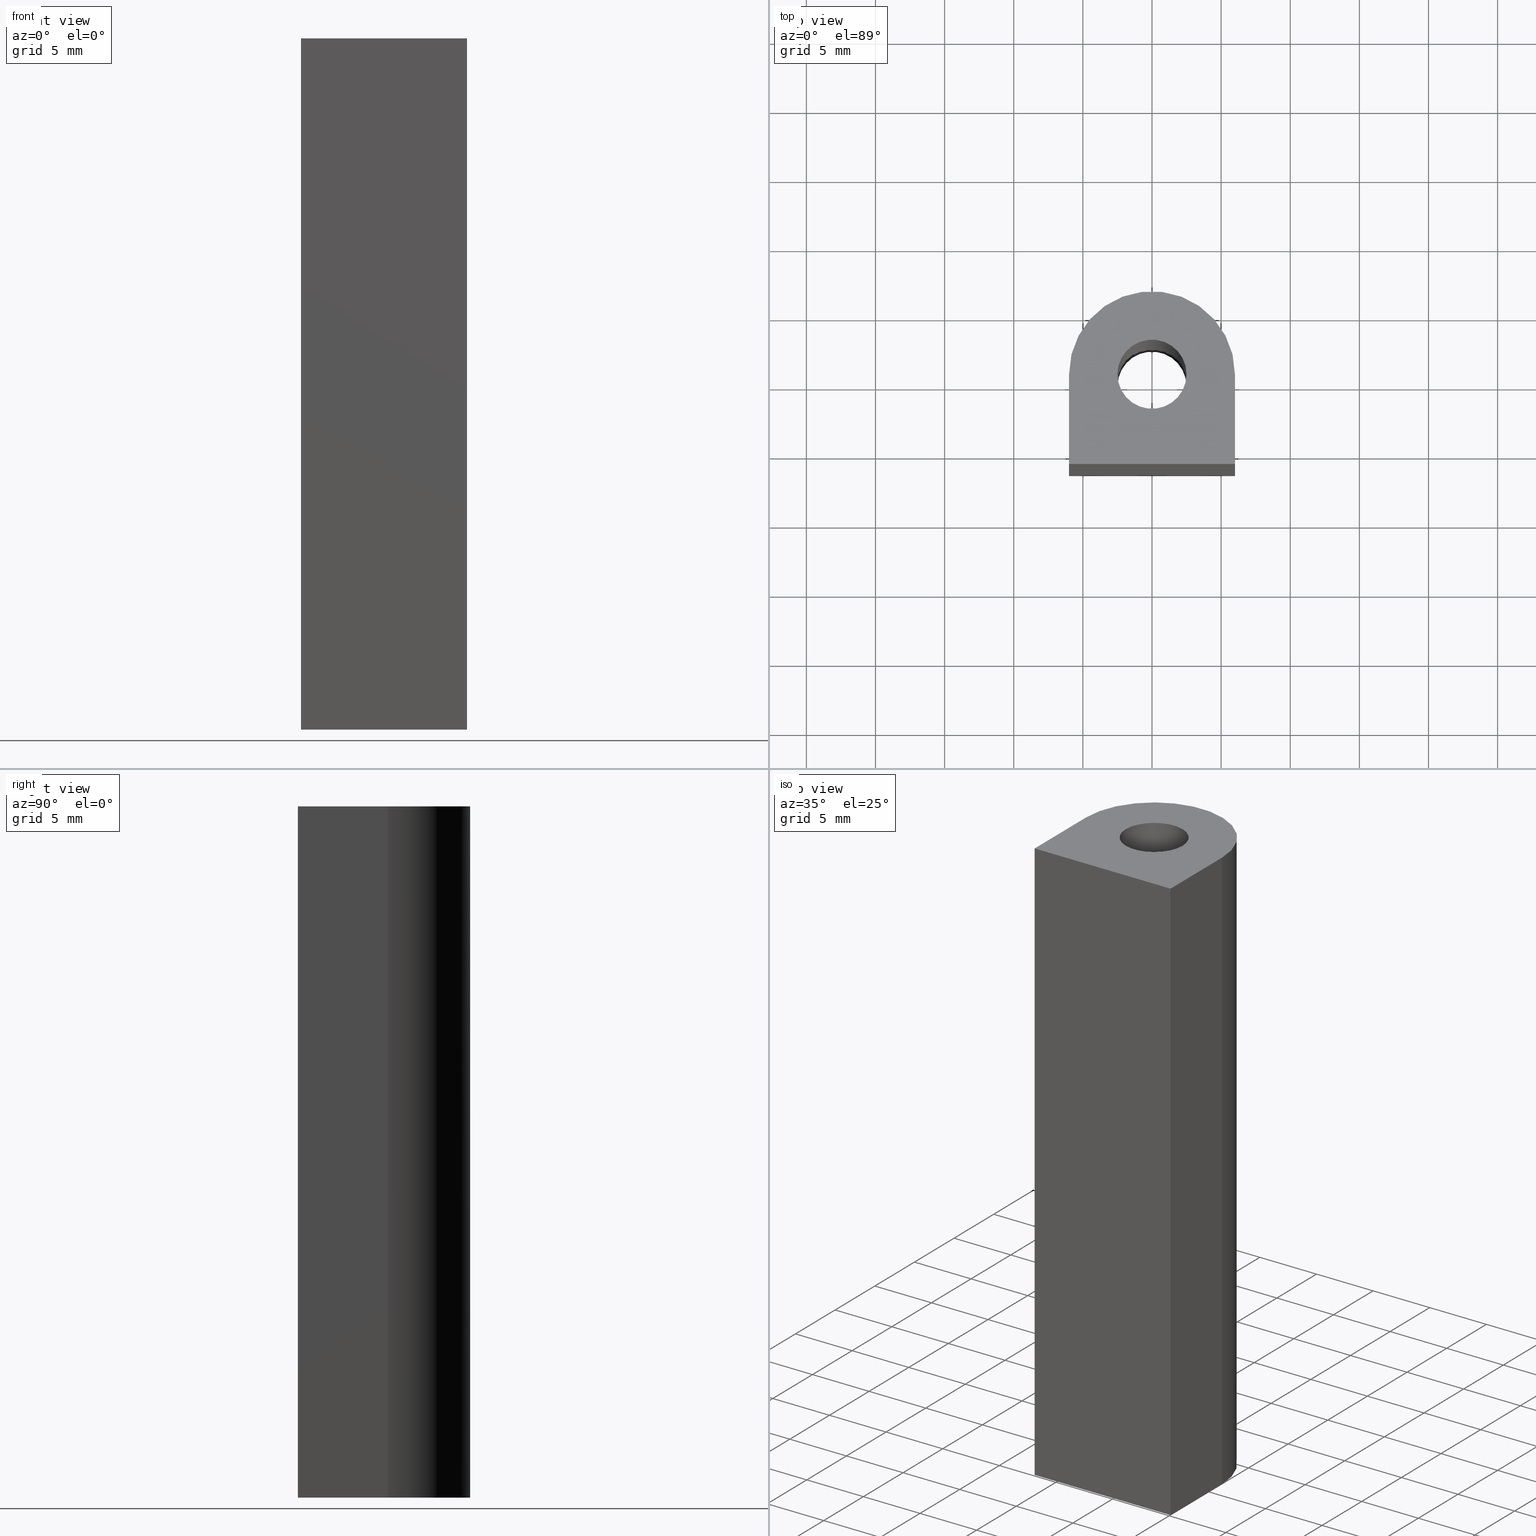
[diagram: canonical four-view strip — front | top / right | iso, engineering-drawing reading convention]
A machine part, canonical four-view strip (front | top / right | iso — engineering-drawing reading convention). The complete STEP part file that produces these views, byte-faithful:
ISO-10303-21;
HEADER;
/* Generated by software containing ST-Developer
 * from STEP Tools, Inc. (www.steptools.com) 
 */

FILE_DESCRIPTION(
/* description */ (''),
/* implementation_level */ '2;1');

FILE_NAME(
/* name */ 'E_3_01_09_12_00_WKZ-0046.stp',
/* time_stamp */ '2025-11-24T10:29:25+01:00',
/* author */ ('d.fischer'),
/* organization */ (''),
/* preprocessor_version */ 'ST-DEVELOPER v20',
/* originating_system */ 'Autodesk Inventor 2025',
/* authorisation */ '');

FILE_SCHEMA (('AUTOMOTIVE_DESIGN { 1 0 10303 214 3 1 1 }'));
ENDSEC;

DATA;
#10=MECHANICAL_DESIGN_GEOMETRIC_PRESENTATION_REPRESENTATION('',(#14,#15),
#234);
#11=SHAPE_REPRESENTATION_RELATIONSHIP('SRR','None',#241,#12);
#12=ADVANCED_BREP_SHAPE_REPRESENTATION('',(#13),#233);
#13=MANIFOLD_SOLID_BREP('Volumenk\X\F6rper1',#129);
#14=STYLED_ITEM('',(#251),#127);
#15=STYLED_ITEM('',(#250),#13);
#16=FACE_BOUND('',#32,.T.);
#17=FACE_BOUND('',#38,.T.);
#18=PLANE('',#155);
#19=PLANE('',#157);
#20=PLANE('',#160);
#21=PLANE('',#161);
#22=PLANE('',#162);
#23=FACE_OUTER_BOUND('',#30,.T.);
#24=FACE_OUTER_BOUND('',#31,.T.);
#25=FACE_OUTER_BOUND('',#33,.T.);
#26=FACE_OUTER_BOUND('',#34,.T.);
#27=FACE_OUTER_BOUND('',#35,.T.);
#28=FACE_OUTER_BOUND('',#36,.T.);
#29=FACE_OUTER_BOUND('',#37,.T.);
#30=EDGE_LOOP('',(#90,#91,#92,#93));
#31=EDGE_LOOP('',(#94,#95,#96,#97));
#32=EDGE_LOOP('',(#98));
#33=EDGE_LOOP('',(#99,#100,#101,#102));
#34=EDGE_LOOP('',(#103,#104,#105,#106));
#35=EDGE_LOOP('',(#107,#108,#109,#110));
#36=EDGE_LOOP('',(#111,#112,#113,#114));
#37=EDGE_LOOP('',(#115,#116,#117,#118));
#38=EDGE_LOOP('',(#119));
#39=LINE('',#203,#50);
#40=LINE('',#208,#51);
#41=LINE('',#210,#52);
#42=LINE('',#212,#53);
#43=LINE('',#217,#54);
#44=LINE('',#218,#55);
#45=LINE('',#219,#56);
#46=LINE('',#223,#57);
#47=LINE('',#226,#58);
#48=LINE('',#227,#59);
#49=LINE('',#229,#60);
#50=VECTOR('',#169,2.5);
#51=VECTOR('',#174,10.);
#52=VECTOR('',#175,10.);
#53=VECTOR('',#176,10.);
#54=VECTOR('',#181,10.);
#55=VECTOR('',#182,10.);
#56=VECTOR('',#183,10.);
#57=VECTOR('',#188,10.);
#58=VECTOR('',#191,10.);
#59=VECTOR('',#192,10.);
#60=VECTOR('',#195,10.);
#61=CIRCLE('',#153,2.5);
#62=CIRCLE('',#154,2.5);
#63=CIRCLE('',#156,6.);
#64=CIRCLE('',#159,6.);
#65=VERTEX_POINT('',#200);
#66=VERTEX_POINT('',#202);
#67=VERTEX_POINT('',#206);
#68=VERTEX_POINT('',#207);
#69=VERTEX_POINT('',#209);
#70=VERTEX_POINT('',#211);
#71=VERTEX_POINT('',#215);
#72=VERTEX_POINT('',#216);
#73=VERTEX_POINT('',#221);
#74=VERTEX_POINT('',#225);
#75=EDGE_CURVE('',#65,#65,#61,.T.);
#76=EDGE_CURVE('',#65,#66,#39,.T.);
#77=EDGE_CURVE('',#66,#66,#62,.T.);
#78=EDGE_CURVE('',#67,#68,#40,.T.);
#79=EDGE_CURVE('',#69,#67,#41,.T.);
#80=EDGE_CURVE('',#70,#69,#42,.T.);
#81=EDGE_CURVE('',#68,#70,#63,.T.);
#82=EDGE_CURVE('',#71,#72,#43,.T.);
#83=EDGE_CURVE('',#70,#72,#44,.T.);
#84=EDGE_CURVE('',#71,#69,#45,.T.);
#85=EDGE_CURVE('',#72,#73,#64,.T.);
#86=EDGE_CURVE('',#68,#73,#46,.T.);
#87=EDGE_CURVE('',#73,#74,#47,.T.);
#88=EDGE_CURVE('',#67,#74,#48,.T.);
#89=EDGE_CURVE('',#74,#71,#49,.T.);
#90=ORIENTED_EDGE('',*,*,#75,.F.);
#91=ORIENTED_EDGE('',*,*,#76,.T.);
#92=ORIENTED_EDGE('',*,*,#77,.F.);
#93=ORIENTED_EDGE('',*,*,#76,.F.);
#94=ORIENTED_EDGE('',*,*,#78,.F.);
#95=ORIENTED_EDGE('',*,*,#79,.F.);
#96=ORIENTED_EDGE('',*,*,#80,.F.);
#97=ORIENTED_EDGE('',*,*,#81,.F.);
#98=ORIENTED_EDGE('',*,*,#75,.T.);
#99=ORIENTED_EDGE('',*,*,#82,.T.);
#100=ORIENTED_EDGE('',*,*,#83,.F.);
#101=ORIENTED_EDGE('',*,*,#80,.T.);
#102=ORIENTED_EDGE('',*,*,#84,.F.);
#103=ORIENTED_EDGE('',*,*,#85,.T.);
#104=ORIENTED_EDGE('',*,*,#86,.F.);
#105=ORIENTED_EDGE('',*,*,#81,.T.);
#106=ORIENTED_EDGE('',*,*,#83,.T.);
#107=ORIENTED_EDGE('',*,*,#87,.T.);
#108=ORIENTED_EDGE('',*,*,#88,.F.);
#109=ORIENTED_EDGE('',*,*,#78,.T.);
#110=ORIENTED_EDGE('',*,*,#86,.T.);
#111=ORIENTED_EDGE('',*,*,#89,.T.);
#112=ORIENTED_EDGE('',*,*,#84,.T.);
#113=ORIENTED_EDGE('',*,*,#79,.T.);
#114=ORIENTED_EDGE('',*,*,#88,.T.);
#115=ORIENTED_EDGE('',*,*,#82,.F.);
#116=ORIENTED_EDGE('',*,*,#89,.F.);
#117=ORIENTED_EDGE('',*,*,#87,.F.);
#118=ORIENTED_EDGE('',*,*,#85,.F.);
#119=ORIENTED_EDGE('',*,*,#77,.T.);
#120=CYLINDRICAL_SURFACE('',#152,2.5);
#121=CYLINDRICAL_SURFACE('',#158,6.);
#122=ADVANCED_FACE('',(#23),#120,.F.);
#123=ADVANCED_FACE('',(#24,#16),#18,.F.);
#124=ADVANCED_FACE('',(#25),#19,.T.);
#125=ADVANCED_FACE('',(#26),#121,.T.);
#126=ADVANCED_FACE('',(#27),#20,.T.);
#127=ADVANCED_FACE('',(#28),#21,.T.);
#128=ADVANCED_FACE('',(#29,#17),#22,.T.);
#129=CLOSED_SHELL('',(#122,#123,#124,#125,#126,#127,#128));
#130=DERIVED_UNIT_ELEMENT(#133,1.);
#131=DERIVED_UNIT_ELEMENT(#236,-3.);
#132=DIMENSIONAL_EXPONENTS(0.,1.,0.,0.,0.,0.,0.);
#133=(
CONVERSION_BASED_UNIT('gram',#135)
MASS_UNIT()
NAMED_UNIT(#132)
);
#134=(
MASS_UNIT()
NAMED_UNIT(*)
SI_UNIT(.KILO.,.GRAM.)
);
#135=MASS_MEASURE_WITH_UNIT(MASS_MEASURE(0.001),#134);
#136=DERIVED_UNIT((#130,#131));
#137=MEASURE_REPRESENTATION_ITEM('density measure',
POSITIVE_RATIO_MEASURE(8.03),#136);
#138=PROPERTY_DEFINITION_REPRESENTATION(#143,#140);
#139=PROPERTY_DEFINITION_REPRESENTATION(#144,#141);
#140=REPRESENTATION('material name',(#142),#233);
#141=REPRESENTATION('density',(#137),#233);
#142=DESCRIPTIVE_REPRESENTATION_ITEM('1.4301','1.4301');
#143=PROPERTY_DEFINITION('material property','material name',#243);
#144=PROPERTY_DEFINITION('material property','density of part',#243);
#145=DATE_TIME_ROLE('creation_date');
#146=APPLIED_DATE_AND_TIME_ASSIGNMENT(#147,#145,(#243));
#147=DATE_AND_TIME(#148,#149);
#148=CALENDAR_DATE(2011,21,10);
#149=LOCAL_TIME(0,0,0.,#150);
#150=COORDINATED_UNIVERSAL_TIME_OFFSET(0,0,.BEHIND.);
#151=AXIS2_PLACEMENT_3D('',#198,#163,#164);
#152=AXIS2_PLACEMENT_3D('',#199,#165,#166);
#153=AXIS2_PLACEMENT_3D('',#201,#167,#168);
#154=AXIS2_PLACEMENT_3D('',#204,#170,#171);
#155=AXIS2_PLACEMENT_3D('',#205,#172,#173);
#156=AXIS2_PLACEMENT_3D('',#213,#177,#178);
#157=AXIS2_PLACEMENT_3D('',#214,#179,#180);
#158=AXIS2_PLACEMENT_3D('',#220,#184,#185);
#159=AXIS2_PLACEMENT_3D('',#222,#186,#187);
#160=AXIS2_PLACEMENT_3D('',#224,#189,#190);
#161=AXIS2_PLACEMENT_3D('',#228,#193,#194);
#162=AXIS2_PLACEMENT_3D('',#230,#196,#197);
#163=DIRECTION('axis',(0.,0.,1.));
#164=DIRECTION('refdir',(1.,0.,0.));
#165=DIRECTION('center_axis',(0.,0.,1.));
#166=DIRECTION('ref_axis',(-1.,0.,0.));
#167=DIRECTION('center_axis',(0.,0.,1.));
#168=DIRECTION('ref_axis',(-1.,0.,0.));
#169=DIRECTION('',(0.,0.,1.));
#170=DIRECTION('center_axis',(0.,0.,-1.));
#171=DIRECTION('ref_axis',(-1.,0.,0.));
#172=DIRECTION('center_axis',(0.,0.,1.));
#173=DIRECTION('ref_axis',(1.,0.,0.));
#174=DIRECTION('',(-3.41607084500048E-16,1.,0.));
#175=DIRECTION('',(1.,0.,0.));
#176=DIRECTION('',(-1.70803542250024E-16,-1.,0.));
#177=DIRECTION('center_axis',(0.,0.,1.));
#178=DIRECTION('ref_axis',(1.85037170770859E-16,1.,0.));
#179=DIRECTION('center_axis',(-1.,1.70803542250024E-16,0.));
#180=DIRECTION('ref_axis',(0.,0.,1.));
#181=DIRECTION('',(1.70803542250024E-16,1.,0.));
#182=DIRECTION('',(0.,0.,1.));
#183=DIRECTION('',(0.,0.,-1.));
#184=DIRECTION('center_axis',(0.,0.,1.));
#185=DIRECTION('ref_axis',(1.,1.85037170770859E-16,0.));
#186=DIRECTION('center_axis',(0.,0.,-1.));
#187=DIRECTION('ref_axis',(1.,1.85037170770859E-16,0.));
#188=DIRECTION('',(0.,0.,1.));
#189=DIRECTION('center_axis',(1.,3.41607084500048E-16,0.));
#190=DIRECTION('ref_axis',(0.,0.,-1.));
#191=DIRECTION('',(3.41607084500048E-16,-1.,0.));
#192=DIRECTION('',(0.,0.,1.));
#193=DIRECTION('center_axis',(0.,-1.,0.));
#194=DIRECTION('ref_axis',(0.,0.,-1.));
#195=DIRECTION('',(-1.,0.,0.));
#196=DIRECTION('center_axis',(0.,0.,1.));
#197=DIRECTION('ref_axis',(1.,0.,0.));
#198=CARTESIAN_POINT('',(0.,0.,0.));
#199=CARTESIAN_POINT('Origin',(0.,0.25,0.));
#200=CARTESIAN_POINT('',(2.5,0.250000000000001,-25.));
#201=CARTESIAN_POINT('Origin',(0.,0.25,-25.));
#202=CARTESIAN_POINT('',(2.5,0.250000000000001,25.));
#203=CARTESIAN_POINT('',(2.5,0.250000000000001,0.));
#204=CARTESIAN_POINT('Origin',(0.,0.25,25.));
#205=CARTESIAN_POINT('Origin',(-9.71445146547012E-16,-0.885457507234779,
-25.));
#206=CARTESIAN_POINT('',(6.,-6.25,-25.));
#207=CARTESIAN_POINT('',(6.,0.25,-25.));
#208=CARTESIAN_POINT('',(6.,-6.25,-25.));
#209=CARTESIAN_POINT('',(-6.,-6.25,-25.));
#210=CARTESIAN_POINT('',(-6.,-6.25,-25.));
#211=CARTESIAN_POINT('',(-6.,0.25,-25.));
#212=CARTESIAN_POINT('',(-6.,0.25,-25.));
#213=CARTESIAN_POINT('Origin',(-3.33066907387547E-15,0.250000000000001,
-25.));
#214=CARTESIAN_POINT('Origin',(-6.,-6.25,0.));
#215=CARTESIAN_POINT('',(-6.,-6.25,25.));
#216=CARTESIAN_POINT('',(-6.,0.25,25.));
#217=CARTESIAN_POINT('',(-6.,0.25,25.));
#218=CARTESIAN_POINT('',(-6.,0.25,0.));
#219=CARTESIAN_POINT('',(-6.,-6.25,0.));
#220=CARTESIAN_POINT('Origin',(0.,0.249999999999999,0.));
#221=CARTESIAN_POINT('',(6.,0.25,25.));
#222=CARTESIAN_POINT('Origin',(0.,0.249999999999999,25.));
#223=CARTESIAN_POINT('',(6.,0.25,0.));
#224=CARTESIAN_POINT('Origin',(6.,0.25,0.));
#225=CARTESIAN_POINT('',(6.,-6.25,25.));
#226=CARTESIAN_POINT('',(6.,-6.25,25.));
#227=CARTESIAN_POINT('',(6.,-6.25,0.));
#228=CARTESIAN_POINT('Origin',(6.,-6.25,0.));
#229=CARTESIAN_POINT('',(-6.,-6.25,25.));
#230=CARTESIAN_POINT('Origin',(-8.32667268468867E-16,-0.885457507234779,
25.));
#231=UNCERTAINTY_MEASURE_WITH_UNIT(LENGTH_MEASURE(0.01),#235,
'DISTANCE_ACCURACY_VALUE',
'Maximum model space distance between geometric entities at asserted c
onnectivities');
#232=UNCERTAINTY_MEASURE_WITH_UNIT(LENGTH_MEASURE(0.01),#235,
'DISTANCE_ACCURACY_VALUE',
'Maximum model space distance between geometric entities at asserted c
onnectivities');
#233=(
GEOMETRIC_REPRESENTATION_CONTEXT(3)
GLOBAL_UNCERTAINTY_ASSIGNED_CONTEXT((#231))
GLOBAL_UNIT_ASSIGNED_CONTEXT((#235,#237,#238))
REPRESENTATION_CONTEXT('','3D')
);
#234=(
GEOMETRIC_REPRESENTATION_CONTEXT(3)
GLOBAL_UNCERTAINTY_ASSIGNED_CONTEXT((#232))
GLOBAL_UNIT_ASSIGNED_CONTEXT((#235,#237,#238))
REPRESENTATION_CONTEXT('','3D')
);
#235=(
LENGTH_UNIT()
NAMED_UNIT(*)
SI_UNIT(.MILLI.,.METRE.)
);
#236=(
LENGTH_UNIT()
NAMED_UNIT(*)
SI_UNIT(.CENTI.,.METRE.)
);
#237=(
NAMED_UNIT(*)
PLANE_ANGLE_UNIT()
SI_UNIT($,.RADIAN.)
);
#238=(
NAMED_UNIT(*)
SI_UNIT($,.STERADIAN.)
SOLID_ANGLE_UNIT()
);
#239=SHAPE_DEFINITION_REPRESENTATION(#240,#241);
#240=PRODUCT_DEFINITION_SHAPE('',$,#243);
#241=SHAPE_REPRESENTATION('',(#151),#233);
#242=PRODUCT_DEFINITION_CONTEXT('part definition',#247,'design');
#243=PRODUCT_DEFINITION('WKZ-0046','E_3_01_09_12_00_WKZ-0046',#244,#242);
#244=PRODUCT_DEFINITION_FORMATION('',$,#249);
#245=PRODUCT_RELATED_PRODUCT_CATEGORY('E_3_01_09_12_00_WKZ-0046',
'E_3_01_09_12_00_WKZ-0046',(#249));
#246=APPLICATION_PROTOCOL_DEFINITION('international standard',
'automotive_design',2009,#247);
#247=APPLICATION_CONTEXT(
'Core Data for Automotive Mechanical Design Process');
#248=PRODUCT_CONTEXT('part definition',#247,'mechanical');
#249=PRODUCT('WKZ-0046','E_3_01_09_12_00_WKZ-0046',$,(#248));
#250=PRESENTATION_STYLE_ASSIGNMENT((#252));
#251=PRESENTATION_STYLE_ASSIGNMENT((#253));
#252=SURFACE_STYLE_USAGE(.BOTH.,#256);
#253=SURFACE_STYLE_USAGE(.BOTH.,#257);
#254=SURFACE_STYLE_RENDERING_WITH_PROPERTIES($,#264,(#255));
#255=SURFACE_STYLE_TRANSPARENT(0.);
#256=SURFACE_SIDE_STYLE('',(#258,#254));
#257=SURFACE_SIDE_STYLE('',(#259));
#258=SURFACE_STYLE_FILL_AREA(#260);
#259=SURFACE_STYLE_FILL_AREA(#261);
#260=FILL_AREA_STYLE('',(#262));
#261=FILL_AREA_STYLE('',(#263));
#262=FILL_AREA_STYLE_COLOUR('',#264);
#263=FILL_AREA_STYLE_COLOUR('',#265);
#264=COLOUR_RGB('',0.92156862745098,0.92156862745098,0.92156862745098);
#265=COLOUR_RGB('',0.16078431372549,0.16078431372549,0.16078431372549);
ENDSEC;
END-ISO-10303-21;
